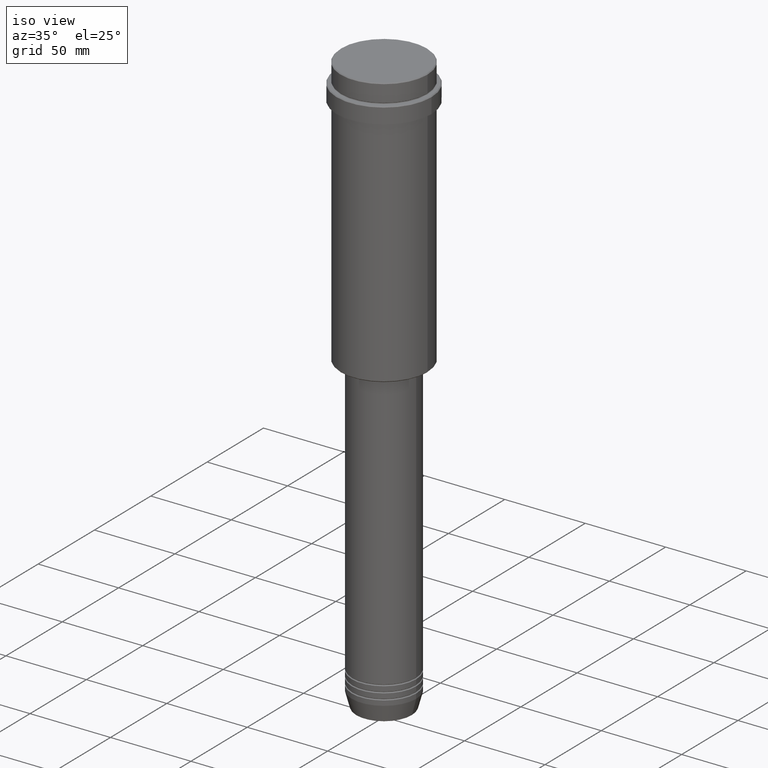
[diagram: clean part render]
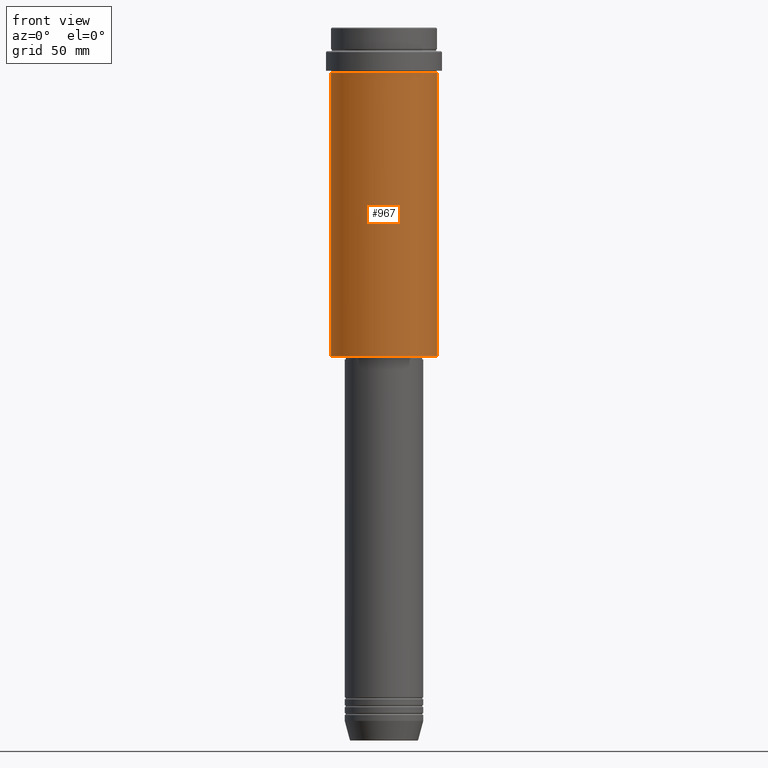
[diagram: tour spotlight — one face highlighted and labeled with its STEP entity id]
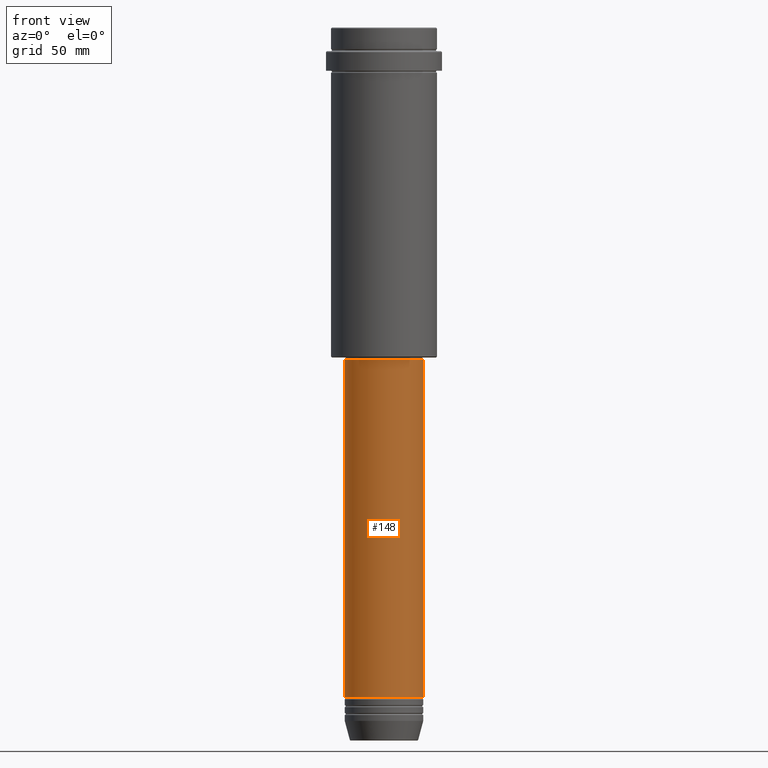
[diagram: tour spotlight — one face highlighted and labeled with its STEP entity id]
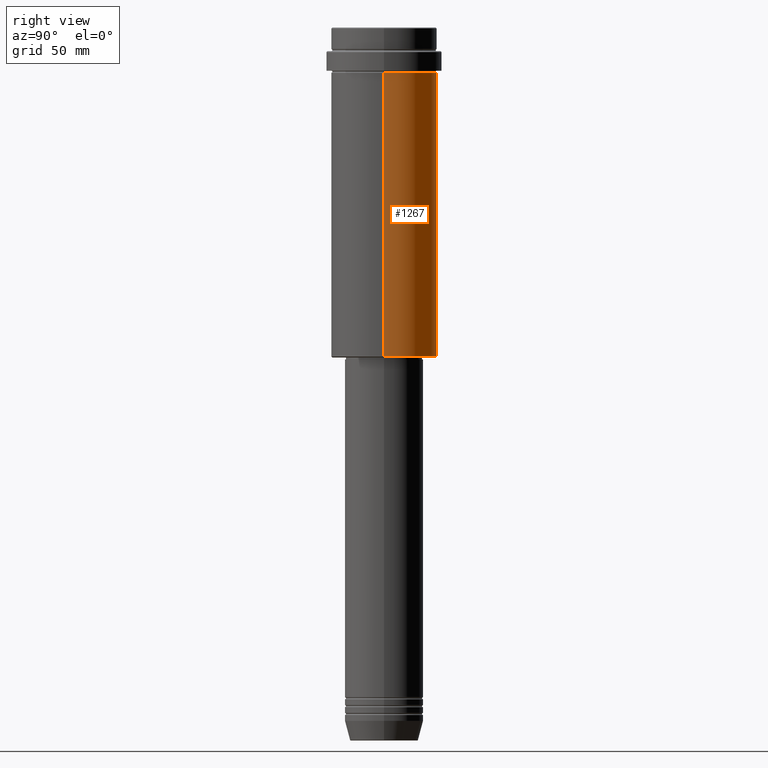
[diagram: tour spotlight — one face highlighted and labeled with its STEP entity id]
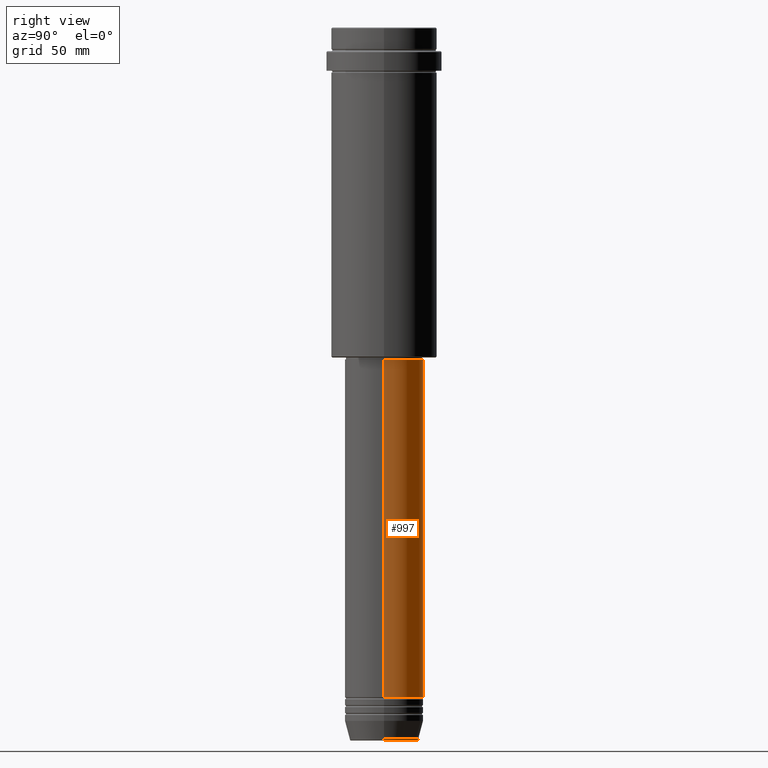
[diagram: tour spotlight — one face highlighted and labeled with its STEP entity id]
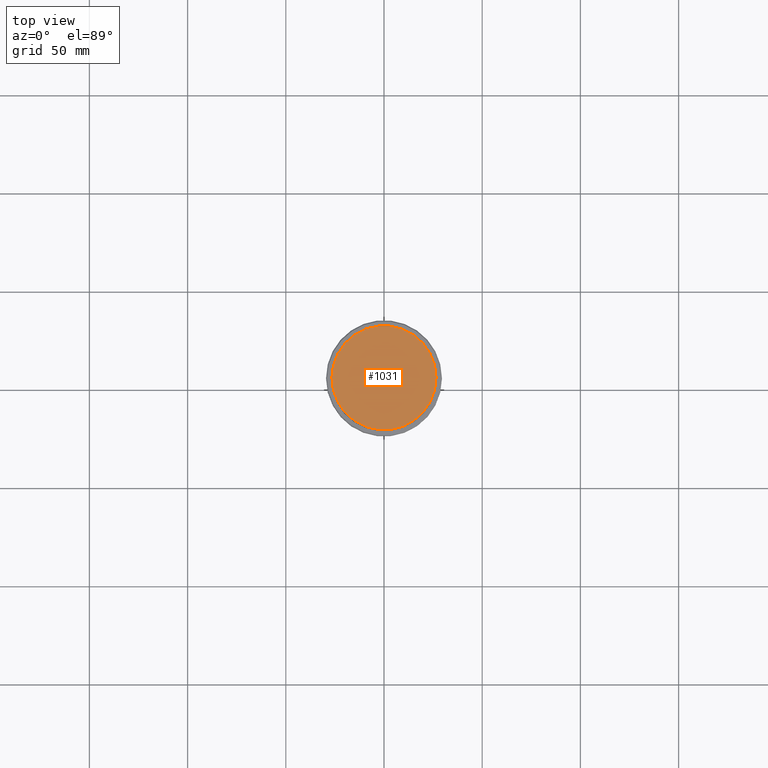
[diagram: tour spotlight — one face highlighted and labeled with its STEP entity id]
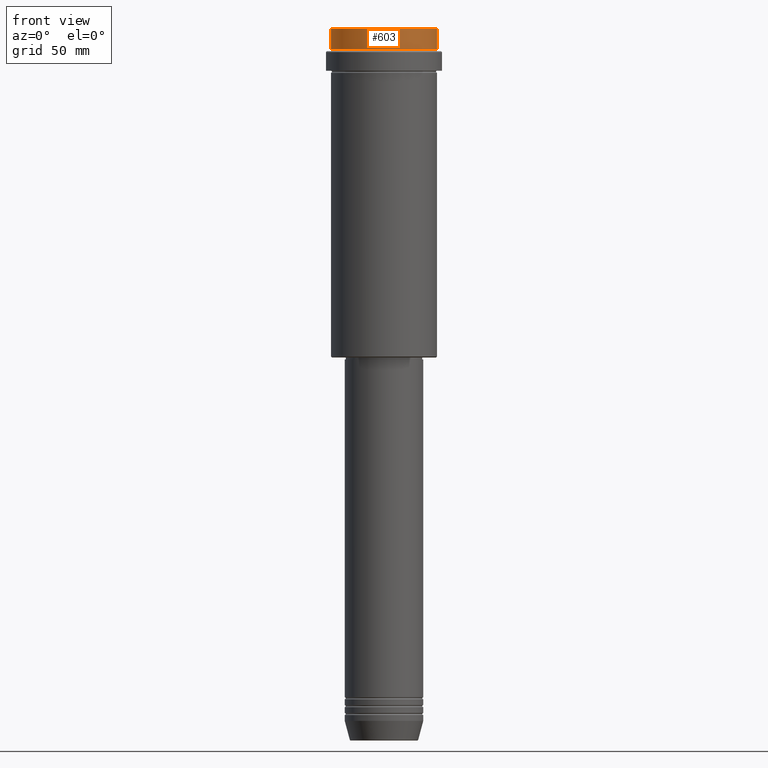
[diagram: tour spotlight — one face highlighted and labeled with its STEP entity id]
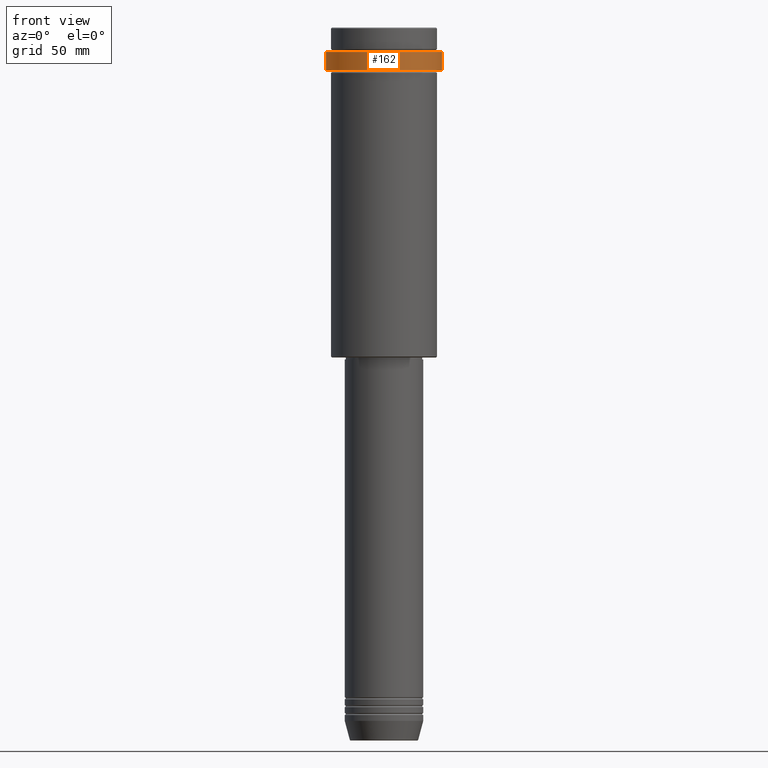
[diagram: tour spotlight — one face highlighted and labeled with its STEP entity id]
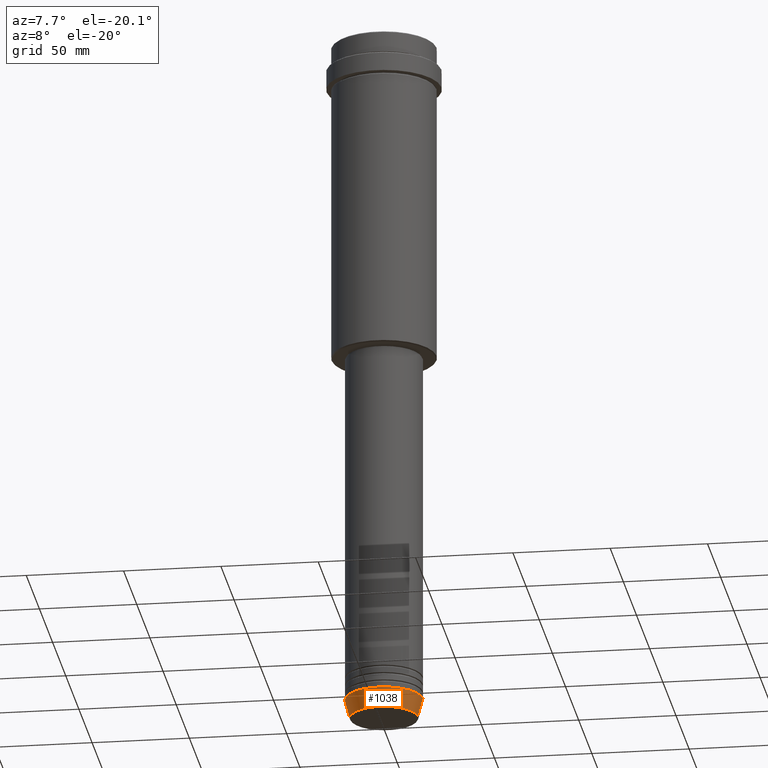
[diagram: tour spotlight — one face highlighted and labeled with its STEP entity id]
A machine part: a face-by-face anatomy tour. The part has 52 B-rep faces; the first image is the clean iso view, then the 8 largest visible faces are spotlighted one at a time (largest first), each with its STEP entity span.

Face 1 — front view, entity #967. In plain terms, the highlighted cylindrical surface (partial cylindrical patch) has radius 27 mm, axis along (-0, -0, 1).
Definition (entity closure, byte-faithful):
#1 = VERTEX_POINT ( 'NONE', #900 ) ;
#57 = DIRECTION ( 'NONE',  ( -0.000000000000000000, -0.000000000000000000, 1.000000000000000000 ) ) ;
#61 = CARTESIAN_POINT ( 'NONE',  ( -27.00000000000000355, 3.306546357697854128E-15, -23.00000000000001421 ) ) ;
#118 = EDGE_CURVE ( 'NONE', #1404, #1, #1062, .T. ) ;
#120 = DIRECTION ( 'NONE',  ( 1.000000000000000000, 0.000000000000000000, 0.000000000000000000 ) ) ;
#122 = DIRECTION ( 'NONE',  ( -0.000000000000000000, -0.000000000000000000, 1.000000000000000000 ) ) ;
#141 = CARTESIAN_POINT ( 'NONE',  ( 0.000000000000000000, 0.000000000000000000, -23.00000000000001421 ) ) ;
#192 = EDGE_LOOP ( 'NONE', ( #680, #232, #1278, #1073 ) ) ;
#232 = ORIENTED_EDGE ( 'NONE', *, *, #1353, .T. ) ;
#238 = EDGE_CURVE ( 'NONE', #768, #1404, #844, .T. ) ;
#269 = CIRCLE ( 'NONE', #958, 27.00000000000000355 ) ;
#282 = VECTOR ( 'NONE', #1263, 1000.000000000000000 ) ;
#371 = DIRECTION ( 'NONE',  ( -1.000000000000000000, 0.000000000000000000, 0.000000000000000000 ) ) ;
#496 = DIRECTION ( 'NONE',  ( -0.000000000000000000, -0.000000000000000000, 1.000000000000000000 ) ) ;
#555 = DIRECTION ( 'NONE',  ( -0.000000000000000000, -0.000000000000000000, 1.000000000000000000 ) ) ;
#636 = AXIS2_PLACEMENT_3D ( 'NONE', #853, #57, #1374 ) ;
#680 = ORIENTED_EDGE ( 'NONE', *, *, #238, .F. ) ;
#714 = AXIS2_PLACEMENT_3D ( 'NONE', #141, #496, #120 ) ;
#752 = FACE_OUTER_BOUND ( 'NONE', #192, .T. ) ;
#768 = VERTEX_POINT ( 'NONE', #927 ) ;
#793 = LINE ( 'NONE', #1407, #1345 ) ;
#844 = LINE ( 'NONE', #1139, #282 ) ;
#853 = CARTESIAN_POINT ( 'NONE',  ( 0.000000000000000000, 0.000000000000000000, 0.000000000000000000 ) ) ;
#900 = CARTESIAN_POINT ( 'NONE',  ( 27.00000000000000355, 0.000000000000000000, -23.00000000000001421 ) ) ;
#902 = VERTEX_POINT ( 'NONE', #1127 ) ;
#927 = CARTESIAN_POINT ( 'NONE',  ( -27.00000000000000355, 3.306546357697854128E-15, -167.5000000000000568 ) ) ;
#958 = AXIS2_PLACEMENT_3D ( 'NONE', #1344, #122, #371 ) ;
#967 = ADVANCED_FACE ( 'NONE', ( #752 ), #1053, .T. ) ;
#1040 = EDGE_CURVE ( 'NONE', #902, #1, #793, .T. ) ;
#1053 = CYLINDRICAL_SURFACE ( 'NONE', #636, 27.00000000000000355 ) ;
#1062 = CIRCLE ( 'NONE', #714, 27.00000000000000355 ) ;
#1073 = ORIENTED_EDGE ( 'NONE', *, *, #118, .F. ) ;
#1127 = CARTESIAN_POINT ( 'NONE',  ( 27.00000000000000355, 0.000000000000000000, -167.5000000000000568 ) ) ;
#1139 = CARTESIAN_POINT ( 'NONE',  ( -27.00000000000000355, 3.306546357697854128E-15, 0.000000000000000000 ) ) ;
#1263 = DIRECTION ( 'NONE',  ( -0.000000000000000000, -0.000000000000000000, 1.000000000000000000 ) ) ;
#1278 = ORIENTED_EDGE ( 'NONE', *, *, #1040, .T. ) ;
#1344 = CARTESIAN_POINT ( 'NONE',  ( 0.000000000000000000, 0.000000000000000000, -167.5000000000000568 ) ) ;
#1345 = VECTOR ( 'NONE', #555, 1000.000000000000000 ) ;
#1353 = EDGE_CURVE ( 'NONE', #768, #902, #269, .T. ) ;
#1374 = DIRECTION ( 'NONE',  ( 1.000000000000000000, 0.000000000000000000, 0.000000000000000000 ) ) ;
#1404 = VERTEX_POINT ( 'NONE', #61 ) ;
#1407 = CARTESIAN_POINT ( 'NONE',  ( 27.00000000000000355, 0.000000000000000000, 0.000000000000000000 ) ) ;

Face 2 — front view, entity #148. In plain terms, the highlighted cylindrical surface (partial cylindrical patch) has radius 20 mm, axis along (-0, -0, 1).
Definition (entity closure, byte-faithful):
#23 = DIRECTION ( 'NONE',  ( 1.000000000000000000, 0.000000000000000000, 0.000000000000000000 ) ) ;
#40 = CARTESIAN_POINT ( 'NONE',  ( -20.00000000000000000, 2.449293598294706513E-15, 0.000000000000000000 ) ) ;
#49 = CIRCLE ( 'NONE', #915, 20.00000000000000000 ) ;
#54 = DIRECTION ( 'NONE',  ( 1.000000000000000000, 0.000000000000000000, 0.000000000000000000 ) ) ;
#78 = CARTESIAN_POINT ( 'NONE',  ( 20.00000000000000000, 0.000000000000000000, 0.000000000000000000 ) ) ;
#89 = EDGE_CURVE ( 'NONE', #699, #415, #604, .T. ) ;
#123 = DIRECTION ( 'NONE',  ( -0.000000000000000000, -0.000000000000000000, 1.000000000000000000 ) ) ;
#148 = ADVANCED_FACE ( 'NONE', ( #283 ), #837, .T. ) ;
#283 = FACE_OUTER_BOUND ( 'NONE', #327, .T. ) ;
#289 = VECTOR ( 'NONE', #959, 1000.000000000000000 ) ;
#327 = EDGE_LOOP ( 'NONE', ( #774, #647, #1166, #1118 ) ) ;
#354 = DIRECTION ( 'NONE',  ( -0.000000000000000000, -0.000000000000000000, 1.000000000000000000 ) ) ;
#415 = VERTEX_POINT ( 'NONE', #841 ) ;
#421 = VERTEX_POINT ( 'NONE', #1361 ) ;
#439 = DIRECTION ( 'NONE',  ( -0.000000000000000000, -0.000000000000000000, 1.000000000000000000 ) ) ;
#456 = AXIS2_PLACEMENT_3D ( 'NONE', #1158, #1039, #54 ) ;
#510 = EDGE_CURVE ( 'NONE', #415, #421, #49, .T. ) ;
#583 = DIRECTION ( 'NONE',  ( 1.000000000000000000, 0.000000000000000000, 0.000000000000000000 ) ) ;
#604 = LINE ( 'NONE', #40, #617 ) ;
#617 = VECTOR ( 'NONE', #123, 1000.000000000000000 ) ;
#640 = LINE ( 'NONE', #78, #289 ) ;
#647 = ORIENTED_EDGE ( 'NONE', *, *, #748, .T. ) ;
#699 = VERTEX_POINT ( 'NONE', #1216 ) ;
#748 = EDGE_CURVE ( 'NONE', #699, #1094, #822, .T. ) ;
#774 = ORIENTED_EDGE ( 'NONE', *, *, #89, .F. ) ;
#822 = CIRCLE ( 'NONE', #1376, 20.00000000000000000 ) ;
#837 = CYLINDRICAL_SURFACE ( 'NONE', #456, 20.00000000000000000 ) ;
#841 = CARTESIAN_POINT ( 'NONE',  ( -20.00000000000000000, 2.449293598294706513E-15, -168.9999999999999432 ) ) ;
#898 = CARTESIAN_POINT ( 'NONE',  ( 20.00000000000000000, 0.000000000000000000, -340.9999999999998863 ) ) ;
#901 = CARTESIAN_POINT ( 'NONE',  ( 0.000000000000000000, 0.000000000000000000, -340.9999999999998863 ) ) ;
#915 = AXIS2_PLACEMENT_3D ( 'NONE', #1405, #439, #23 ) ;
#959 = DIRECTION ( 'NONE',  ( -0.000000000000000000, -0.000000000000000000, 1.000000000000000000 ) ) ;
#1014 = EDGE_CURVE ( 'NONE', #1094, #421, #640, .T. ) ;
#1039 = DIRECTION ( 'NONE',  ( -0.000000000000000000, -0.000000000000000000, 1.000000000000000000 ) ) ;
#1094 = VERTEX_POINT ( 'NONE', #898 ) ;
#1118 = ORIENTED_EDGE ( 'NONE', *, *, #510, .F. ) ;
#1158 = CARTESIAN_POINT ( 'NONE',  ( 0.000000000000000000, 0.000000000000000000, 0.000000000000000000 ) ) ;
#1166 = ORIENTED_EDGE ( 'NONE', *, *, #1014, .T. ) ;
#1216 = CARTESIAN_POINT ( 'NONE',  ( -20.00000000000000000, 2.449293598294706513E-15, -340.9999999999998863 ) ) ;
#1361 = CARTESIAN_POINT ( 'NONE',  ( 20.00000000000000000, 0.000000000000000000, -168.9999999999999432 ) ) ;
#1376 = AXIS2_PLACEMENT_3D ( 'NONE', #901, #354, #583 ) ;
#1405 = CARTESIAN_POINT ( 'NONE',  ( 0.000000000000000000, 0.000000000000000000, -168.9999999999999432 ) ) ;

Face 3 — right view, entity #1267. In plain terms, the highlighted cylindrical surface (partial cylindrical patch) has radius 27 mm, axis along (-0, -0, 1).
Definition (entity closure, byte-faithful):
#1 = VERTEX_POINT ( 'NONE', #900 ) ;
#13 = CARTESIAN_POINT ( 'NONE',  ( 0.000000000000000000, 0.000000000000000000, -167.5000000000000568 ) ) ;
#45 = DIRECTION ( 'NONE',  ( 1.000000000000000000, 0.000000000000000000, 0.000000000000000000 ) ) ;
#61 = CARTESIAN_POINT ( 'NONE',  ( -27.00000000000000355, 3.306546357697854128E-15, -23.00000000000001421 ) ) ;
#86 = EDGE_CURVE ( 'NONE', #1, #1404, #380, .T. ) ;
#129 = FACE_OUTER_BOUND ( 'NONE', #1227, .T. ) ;
#144 = CYLINDRICAL_SURFACE ( 'NONE', #1297, 27.00000000000000355 ) ;
#196 = ORIENTED_EDGE ( 'NONE', *, *, #238, .T. ) ;
#238 = EDGE_CURVE ( 'NONE', #768, #1404, #844, .T. ) ;
#248 = ORIENTED_EDGE ( 'NONE', *, *, #1040, .F. ) ;
#282 = VECTOR ( 'NONE', #1263, 1000.000000000000000 ) ;
#380 = CIRCLE ( 'NONE', #1357, 27.00000000000000355 ) ;
#546 = EDGE_CURVE ( 'NONE', #902, #768, #1155, .T. ) ;
#555 = DIRECTION ( 'NONE',  ( -0.000000000000000000, -0.000000000000000000, 1.000000000000000000 ) ) ;
#672 = DIRECTION ( 'NONE',  ( -1.000000000000000000, 0.000000000000000000, 0.000000000000000000 ) ) ;
#696 = CARTESIAN_POINT ( 'NONE',  ( 0.000000000000000000, 0.000000000000000000, 0.000000000000000000 ) ) ;
#743 = ORIENTED_EDGE ( 'NONE', *, *, #86, .F. ) ;
#768 = VERTEX_POINT ( 'NONE', #927 ) ;
#777 = AXIS2_PLACEMENT_3D ( 'NONE', #13, #1055, #672 ) ;
#793 = LINE ( 'NONE', #1407, #1345 ) ;
#825 = CARTESIAN_POINT ( 'NONE',  ( 0.000000000000000000, 0.000000000000000000, -23.00000000000001421 ) ) ;
#844 = LINE ( 'NONE', #1139, #282 ) ;
#900 = CARTESIAN_POINT ( 'NONE',  ( 27.00000000000000355, 0.000000000000000000, -23.00000000000001421 ) ) ;
#902 = VERTEX_POINT ( 'NONE', #1127 ) ;
#924 = DIRECTION ( 'NONE',  ( -0.000000000000000000, -0.000000000000000000, 1.000000000000000000 ) ) ;
#927 = CARTESIAN_POINT ( 'NONE',  ( -27.00000000000000355, 3.306546357697854128E-15, -167.5000000000000568 ) ) ;
#1024 = ORIENTED_EDGE ( 'NONE', *, *, #546, .T. ) ;
#1033 = DIRECTION ( 'NONE',  ( 1.000000000000000000, 0.000000000000000000, 0.000000000000000000 ) ) ;
#1040 = EDGE_CURVE ( 'NONE', #902, #1, #793, .T. ) ;
#1055 = DIRECTION ( 'NONE',  ( -0.000000000000000000, -0.000000000000000000, 1.000000000000000000 ) ) ;
#1127 = CARTESIAN_POINT ( 'NONE',  ( 27.00000000000000355, 0.000000000000000000, -167.5000000000000568 ) ) ;
#1134 = DIRECTION ( 'NONE',  ( -0.000000000000000000, -0.000000000000000000, 1.000000000000000000 ) ) ;
#1139 = CARTESIAN_POINT ( 'NONE',  ( -27.00000000000000355, 3.306546357697854128E-15, 0.000000000000000000 ) ) ;
#1155 = CIRCLE ( 'NONE', #777, 27.00000000000000355 ) ;
#1227 = EDGE_LOOP ( 'NONE', ( #1024, #196, #743, #248 ) ) ;
#1263 = DIRECTION ( 'NONE',  ( -0.000000000000000000, -0.000000000000000000, 1.000000000000000000 ) ) ;
#1267 = ADVANCED_FACE ( 'NONE', ( #129 ), #144, .T. ) ;
#1297 = AXIS2_PLACEMENT_3D ( 'NONE', #696, #924, #1033 ) ;
#1345 = VECTOR ( 'NONE', #555, 1000.000000000000000 ) ;
#1357 = AXIS2_PLACEMENT_3D ( 'NONE', #825, #1134, #45 ) ;
#1404 = VERTEX_POINT ( 'NONE', #61 ) ;
#1407 = CARTESIAN_POINT ( 'NONE',  ( 27.00000000000000355, 0.000000000000000000, 0.000000000000000000 ) ) ;

Face 4 — right view, entity #997. In plain terms, the highlighted cylindrical surface (partial cylindrical patch) has radius 20 mm, axis along (-0, -0, 1).
Definition (entity closure, byte-faithful):
#20 = CARTESIAN_POINT ( 'NONE',  ( 0.000000000000000000, 0.000000000000000000, -340.9999999999998863 ) ) ;
#40 = CARTESIAN_POINT ( 'NONE',  ( -20.00000000000000000, 2.449293598294706513E-15, 0.000000000000000000 ) ) ;
#42 = DIRECTION ( 'NONE',  ( 1.000000000000000000, 0.000000000000000000, 0.000000000000000000 ) ) ;
#78 = CARTESIAN_POINT ( 'NONE',  ( 20.00000000000000000, 0.000000000000000000, 0.000000000000000000 ) ) ;
#89 = EDGE_CURVE ( 'NONE', #699, #415, #604, .T. ) ;
#123 = DIRECTION ( 'NONE',  ( -0.000000000000000000, -0.000000000000000000, 1.000000000000000000 ) ) ;
#147 = DIRECTION ( 'NONE',  ( -0.000000000000000000, -0.000000000000000000, 1.000000000000000000 ) ) ;
#240 = EDGE_LOOP ( 'NONE', ( #443, #1086, #1306, #903 ) ) ;
#289 = VECTOR ( 'NONE', #959, 1000.000000000000000 ) ;
#302 = EDGE_CURVE ( 'NONE', #421, #415, #597, .T. ) ;
#415 = VERTEX_POINT ( 'NONE', #841 ) ;
#421 = VERTEX_POINT ( 'NONE', #1361 ) ;
#443 = ORIENTED_EDGE ( 'NONE', *, *, #920, .T. ) ;
#462 = CIRCLE ( 'NONE', #547, 20.00000000000000000 ) ;
#547 = AXIS2_PLACEMENT_3D ( 'NONE', #20, #147, #42 ) ;
#597 = CIRCLE ( 'NONE', #1373, 20.00000000000000000 ) ;
#604 = LINE ( 'NONE', #40, #617 ) ;
#617 = VECTOR ( 'NONE', #123, 1000.000000000000000 ) ;
#640 = LINE ( 'NONE', #78, #289 ) ;
#699 = VERTEX_POINT ( 'NONE', #1216 ) ;
#759 = DIRECTION ( 'NONE',  ( 1.000000000000000000, 0.000000000000000000, 0.000000000000000000 ) ) ;
#841 = CARTESIAN_POINT ( 'NONE',  ( -20.00000000000000000, 2.449293598294706513E-15, -168.9999999999999432 ) ) ;
#842 = FACE_OUTER_BOUND ( 'NONE', #240, .T. ) ;
#898 = CARTESIAN_POINT ( 'NONE',  ( 20.00000000000000000, 0.000000000000000000, -340.9999999999998863 ) ) ;
#903 = ORIENTED_EDGE ( 'NONE', *, *, #1014, .F. ) ;
#920 = EDGE_CURVE ( 'NONE', #1094, #699, #462, .T. ) ;
#941 = CARTESIAN_POINT ( 'NONE',  ( 0.000000000000000000, 0.000000000000000000, 0.000000000000000000 ) ) ;
#959 = DIRECTION ( 'NONE',  ( -0.000000000000000000, -0.000000000000000000, 1.000000000000000000 ) ) ;
#991 = CARTESIAN_POINT ( 'NONE',  ( 0.000000000000000000, 0.000000000000000000, -168.9999999999999432 ) ) ;
#997 = ADVANCED_FACE ( 'NONE', ( #842 ), #1292, .T. ) ;
#1014 = EDGE_CURVE ( 'NONE', #1094, #421, #640, .T. ) ;
#1086 = ORIENTED_EDGE ( 'NONE', *, *, #89, .T. ) ;
#1094 = VERTEX_POINT ( 'NONE', #898 ) ;
#1176 = AXIS2_PLACEMENT_3D ( 'NONE', #941, #1282, #759 ) ;
#1212 = DIRECTION ( 'NONE',  ( 1.000000000000000000, 0.000000000000000000, 0.000000000000000000 ) ) ;
#1216 = CARTESIAN_POINT ( 'NONE',  ( -20.00000000000000000, 2.449293598294706513E-15, -340.9999999999998863 ) ) ;
#1282 = DIRECTION ( 'NONE',  ( -0.000000000000000000, -0.000000000000000000, 1.000000000000000000 ) ) ;
#1292 = CYLINDRICAL_SURFACE ( 'NONE', #1176, 20.00000000000000000 ) ;
#1306 = ORIENTED_EDGE ( 'NONE', *, *, #302, .F. ) ;
#1361 = CARTESIAN_POINT ( 'NONE',  ( 20.00000000000000000, 0.000000000000000000, -168.9999999999999432 ) ) ;
#1373 = AXIS2_PLACEMENT_3D ( 'NONE', #991, #1415, #1212 ) ;
#1415 = DIRECTION ( 'NONE',  ( -0.000000000000000000, -0.000000000000000000, 1.000000000000000000 ) ) ;

Face 5 — top view, entity #1031. In plain terms, the highlighted planar face has unit normal (0, -0, 1).
Definition (entity closure, byte-faithful):
#52 = PLANE ( 'NONE',  #781 ) ;
#150 = DIRECTION ( 'NONE',  ( 1.000000000000000000, 0.000000000000000000, 0.000000000000000000 ) ) ;
#375 = VERTEX_POINT ( 'NONE', #595 ) ;
#431 = CIRCLE ( 'NONE', #1231, 26.50000000000002487 ) ;
#495 = EDGE_LOOP ( 'NONE', ( #575, #750 ) ) ;
#506 = CIRCLE ( 'NONE', #821, 26.50000000000002487 ) ;
#513 = DIRECTION ( 'NONE',  ( 0.000000000000000000, -0.000000000000000000, 1.000000000000000000 ) ) ;
#560 = CARTESIAN_POINT ( 'NONE',  ( 0.000000000000000000, 0.000000000000000000, 0.000000000000000000 ) ) ;
#575 = ORIENTED_EDGE ( 'NONE', *, *, #623, .T. ) ;
#595 = CARTESIAN_POINT ( 'NONE',  ( 26.50000000000002487, 3.275930187719171524E-15, 0.000000000000000000 ) ) ;
#611 = DIRECTION ( 'NONE',  ( -0.000000000000000000, -0.000000000000000000, 1.000000000000000000 ) ) ;
#623 = EDGE_CURVE ( 'NONE', #630, #375, #506, .T. ) ;
#630 = VERTEX_POINT ( 'NONE', #1189 ) ;
#750 = ORIENTED_EDGE ( 'NONE', *, *, #1268, .T. ) ;
#781 = AXIS2_PLACEMENT_3D ( 'NONE', #831, #513, #1266 ) ;
#821 = AXIS2_PLACEMENT_3D ( 'NONE', #560, #611, #872 ) ;
#831 = CARTESIAN_POINT ( 'NONE',  ( 0.000000000000000000, 0.000000000000000000, 0.000000000000000000 ) ) ;
#872 = DIRECTION ( 'NONE',  ( 1.000000000000000000, 0.000000000000000000, 0.000000000000000000 ) ) ;
#1031 = ADVANCED_FACE ( 'NONE', ( #1043 ), #52, .T. ) ;
#1043 = FACE_OUTER_BOUND ( 'NONE', #495, .T. ) ;
#1132 = CARTESIAN_POINT ( 'NONE',  ( 0.000000000000000000, 0.000000000000000000, 0.000000000000000000 ) ) ;
#1189 = CARTESIAN_POINT ( 'NONE',  ( -26.50000000000002487, 0.000000000000000000, 0.000000000000000000 ) ) ;
#1231 = AXIS2_PLACEMENT_3D ( 'NONE', #1132, #1350, #150 ) ;
#1266 = DIRECTION ( 'NONE',  ( 1.000000000000000000, 0.000000000000000000, 0.000000000000000000 ) ) ;
#1268 = EDGE_CURVE ( 'NONE', #375, #630, #431, .T. ) ;
#1350 = DIRECTION ( 'NONE',  ( -0.000000000000000000, -0.000000000000000000, 1.000000000000000000 ) ) ;

Face 6 — front view, entity #603. In plain terms, the highlighted cylindrical surface (partial cylindrical patch) has radius 27 mm, axis along (-0, -0, 1).
Definition (entity closure, byte-faithful):
#21 = ORIENTED_EDGE ( 'NONE', *, *, #688, .F. ) ;
#33 = AXIS2_PLACEMENT_3D ( 'NONE', #1315, #980, #331 ) ;
#60 = LINE ( 'NONE', #612, #1339 ) ;
#104 = CARTESIAN_POINT ( 'NONE',  ( 27.00000000000000355, 0.000000000000000000, -0.4999999999999241163 ) ) ;
#124 = CARTESIAN_POINT ( 'NONE',  ( 0.000000000000000000, 0.000000000000000000, -11.00000000000000178 ) ) ;
#126 = ORIENTED_EDGE ( 'NONE', *, *, #132, .T. ) ;
#132 = EDGE_CURVE ( 'NONE', #204, #274, #60, .T. ) ;
#153 = FACE_OUTER_BOUND ( 'NONE', #186, .T. ) ;
#163 = DIRECTION ( 'NONE',  ( -0.000000000000000000, -0.000000000000000000, 1.000000000000000000 ) ) ;
#186 = EDGE_LOOP ( 'NONE', ( #21, #1019, #126, #512 ) ) ;
#193 = VERTEX_POINT ( 'NONE', #278 ) ;
#204 = VERTEX_POINT ( 'NONE', #262 ) ;
#213 = AXIS2_PLACEMENT_3D ( 'NONE', #807, #540, #982 ) ;
#262 = CARTESIAN_POINT ( 'NONE',  ( 27.00000000000000355, 0.000000000000000000, -11.00000000000000178 ) ) ;
#274 = VERTEX_POINT ( 'NONE', #104 ) ;
#278 = CARTESIAN_POINT ( 'NONE',  ( -27.00000000000000355, 3.306546357697854128E-15, -11.00000000000000178 ) ) ;
#331 = DIRECTION ( 'NONE',  ( 1.000000000000000000, 0.000000000000000000, 0.000000000000000000 ) ) ;
#374 = EDGE_CURVE ( 'NONE', #193, #204, #1082, .T. ) ;
#475 = DIRECTION ( 'NONE',  ( -0.000000000000000000, -0.000000000000000000, 1.000000000000000000 ) ) ;
#476 = CARTESIAN_POINT ( 'NONE',  ( -27.00000000000000355, 3.306546357697854128E-15, -0.4999999999999241163 ) ) ;
#479 = CYLINDRICAL_SURFACE ( 'NONE', #213, 27.00000000000000355 ) ;
#512 = ORIENTED_EDGE ( 'NONE', *, *, #1126, .T. ) ;
#540 = DIRECTION ( 'NONE',  ( -0.000000000000000000, -0.000000000000000000, 1.000000000000000000 ) ) ;
#603 = ADVANCED_FACE ( 'NONE', ( #153 ), #479, .T. ) ;
#612 = CARTESIAN_POINT ( 'NONE',  ( 27.00000000000000355, 0.000000000000000000, 0.000000000000000000 ) ) ;
#619 = AXIS2_PLACEMENT_3D ( 'NONE', #124, #475, #697 ) ;
#665 = DIRECTION ( 'NONE',  ( -0.000000000000000000, -0.000000000000000000, 1.000000000000000000 ) ) ;
#688 = EDGE_CURVE ( 'NONE', #193, #911, #988, .T. ) ;
#697 = DIRECTION ( 'NONE',  ( 1.000000000000000000, 0.000000000000000000, 0.000000000000000000 ) ) ;
#773 = CARTESIAN_POINT ( 'NONE',  ( -27.00000000000000355, 3.306546357697854128E-15, 0.000000000000000000 ) ) ;
#807 = CARTESIAN_POINT ( 'NONE',  ( 0.000000000000000000, 0.000000000000000000, 0.000000000000000000 ) ) ;
#911 = VERTEX_POINT ( 'NONE', #476 ) ;
#980 = DIRECTION ( 'NONE',  ( 0.000000000000000000, 0.000000000000000000, -1.000000000000000000 ) ) ;
#982 = DIRECTION ( 'NONE',  ( 1.000000000000000000, 0.000000000000000000, 0.000000000000000000 ) ) ;
#988 = LINE ( 'NONE', #773, #1228 ) ;
#1019 = ORIENTED_EDGE ( 'NONE', *, *, #374, .T. ) ;
#1082 = CIRCLE ( 'NONE', #619, 27.00000000000000355 ) ;
#1087 = CIRCLE ( 'NONE', #33, 27.00000000000000355 ) ;
#1126 = EDGE_CURVE ( 'NONE', #274, #911, #1087, .T. ) ;
#1228 = VECTOR ( 'NONE', #665, 1000.000000000000000 ) ;
#1315 = CARTESIAN_POINT ( 'NONE',  ( 0.000000000000000000, 0.000000000000000000, -0.4999999999999241163 ) ) ;
#1339 = VECTOR ( 'NONE', #163, 1000.000000000000000 ) ;

Face 7 — front view, entity #162. In plain terms, the highlighted cylindrical surface (partial cylindrical patch) has radius 29.5 mm, axis along (-0, -0, 1).
Definition (entity closure, byte-faithful):
#39 = LINE ( 'NONE', #582, #550 ) ;
#115 = AXIS2_PLACEMENT_3D ( 'NONE', #1398, #1316, #782 ) ;
#162 = ADVANCED_FACE ( 'NONE', ( #1169 ), #518, .T. ) ;
#170 = AXIS2_PLACEMENT_3D ( 'NONE', #358, #1243, #497 ) ;
#215 = VERTEX_POINT ( 'NONE', #1012 ) ;
#234 = VERTEX_POINT ( 'NONE', #412 ) ;
#275 = CARTESIAN_POINT ( 'NONE',  ( 29.49999999999999645, 0.000000000000000000, -22.00000000000000711 ) ) ;
#292 = EDGE_LOOP ( 'NONE', ( #840, #745, #904, #470 ) ) ;
#358 = CARTESIAN_POINT ( 'NONE',  ( 0.000000000000000000, 0.000000000000000000, -22.00000000000000711 ) ) ;
#387 = CARTESIAN_POINT ( 'NONE',  ( 0.000000000000000000, 0.000000000000000000, 0.000000000000000000 ) ) ;
#409 = DIRECTION ( 'NONE',  ( -0.000000000000000000, -0.000000000000000000, 1.000000000000000000 ) ) ;
#412 = CARTESIAN_POINT ( 'NONE',  ( -29.50000000000000000, 3.612708057484691604E-15, -12.50000000000006040 ) ) ;
#470 = ORIENTED_EDGE ( 'NONE', *, *, #753, .T. ) ;
#474 = DIRECTION ( 'NONE',  ( -0.000000000000000000, -0.000000000000000000, 1.000000000000000000 ) ) ;
#497 = DIRECTION ( 'NONE',  ( 1.000000000000000000, 0.000000000000000000, 0.000000000000000000 ) ) ;
#518 = CYLINDRICAL_SURFACE ( 'NONE', #754, 29.50000000000000000 ) ;
#550 = VECTOR ( 'NONE', #474, 1000.000000000000000 ) ;
#582 = CARTESIAN_POINT ( 'NONE',  ( 29.50000000000000000, 0.000000000000000000, 0.000000000000000000 ) ) ;
#620 = CIRCLE ( 'NONE', #115, 29.50000000000000000 ) ;
#733 = CARTESIAN_POINT ( 'NONE',  ( -29.50000000000000000, 3.612708057484691604E-15, 0.000000000000000000 ) ) ;
#745 = ORIENTED_EDGE ( 'NONE', *, *, #1253, .T. ) ;
#753 = EDGE_CURVE ( 'NONE', #215, #234, #620, .T. ) ;
#754 = AXIS2_PLACEMENT_3D ( 'NONE', #387, #1258, #947 ) ;
#758 = CIRCLE ( 'NONE', #170, 29.49999999999999645 ) ;
#782 = DIRECTION ( 'NONE',  ( 1.000000000000000000, 0.000000000000000000, 0.000000000000000000 ) ) ;
#811 = CARTESIAN_POINT ( 'NONE',  ( -29.49999999999999645, 3.612708057484690815E-15, -22.00000000000000711 ) ) ;
#840 = ORIENTED_EDGE ( 'NONE', *, *, #971, .F. ) ;
#880 = VERTEX_POINT ( 'NONE', #811 ) ;
#904 = ORIENTED_EDGE ( 'NONE', *, *, #1294, .T. ) ;
#907 = VERTEX_POINT ( 'NONE', #275 ) ;
#947 = DIRECTION ( 'NONE',  ( 1.000000000000000000, 0.000000000000000000, 0.000000000000000000 ) ) ;
#971 = EDGE_CURVE ( 'NONE', #880, #234, #1366, .T. ) ;
#1012 = CARTESIAN_POINT ( 'NONE',  ( 29.50000000000000000, 0.000000000000000000, -12.50000000000006040 ) ) ;
#1045 = VECTOR ( 'NONE', #409, 1000.000000000000000 ) ;
#1169 = FACE_OUTER_BOUND ( 'NONE', #292, .T. ) ;
#1243 = DIRECTION ( 'NONE',  ( -0.000000000000000000, -0.000000000000000000, 1.000000000000000000 ) ) ;
#1253 = EDGE_CURVE ( 'NONE', #880, #907, #758, .T. ) ;
#1258 = DIRECTION ( 'NONE',  ( -0.000000000000000000, -0.000000000000000000, 1.000000000000000000 ) ) ;
#1294 = EDGE_CURVE ( 'NONE', #907, #215, #39, .T. ) ;
#1316 = DIRECTION ( 'NONE',  ( 0.000000000000000000, 0.000000000000000000, -1.000000000000000000 ) ) ;
#1366 = LINE ( 'NONE', #733, #1045 ) ;
#1398 = CARTESIAN_POINT ( 'NONE',  ( 0.000000000000000000, 0.000000000000000000, -12.50000000000006040 ) ) ;

Face 8 — auxiliary view, entity #1038. In plain terms, the highlighted conical surface has half-angle 15 deg.
Definition (entity closure, byte-faithful):
#14 = CARTESIAN_POINT ( 'NONE',  ( 20.00000000000000000, 0.000000000000000000, -353.0000000000000568 ) ) ;
#30 = VECTOR ( 'NONE', #601, 1000.000000000000114 ) ;
#140 = ORIENTED_EDGE ( 'NONE', *, *, #452, .T. ) ;
#152 = DIRECTION ( 'NONE',  ( -0.000000000000000000, -0.000000000000000000, 1.000000000000000000 ) ) ;
#190 = AXIS2_PLACEMENT_3D ( 'NONE', #625, #945, #1369 ) ;
#223 = VERTEX_POINT ( 'NONE', #14 ) ;
#224 = EDGE_CURVE ( 'NONE', #567, #1298, #936, .T. ) ;
#297 = LINE ( 'NONE', #923, #30 ) ;
#419 = DIRECTION ( 'NONE',  ( 0.2588190451025211836, 0.000000000000000000, 0.9659258262890680902 ) ) ;
#452 = EDGE_CURVE ( 'NONE', #1298, #223, #964, .T. ) ;
#460 = DIRECTION ( 'NONE',  ( 1.000000000000000000, 0.000000000000000000, 0.000000000000000000 ) ) ;
#473 = EDGE_LOOP ( 'NONE', ( #1236, #1355, #140, #1284 ) ) ;
#517 = CARTESIAN_POINT ( 'NONE',  ( -17.41980749484382684, 2.291302373663531915E-15, -362.6294095225512706 ) ) ;
#567 = VERTEX_POINT ( 'NONE', #517 ) ;
#568 = EDGE_CURVE ( 'NONE', #567, #1105, #297, .T. ) ;
#601 = DIRECTION ( 'NONE',  ( -0.2588190451025211836, 3.169619151431770488E-17, 0.9659258262890680902 ) ) ;
#610 = DIRECTION ( 'NONE',  ( 1.000000000000000000, 0.000000000000000000, 0.000000000000000000 ) ) ;
#621 = CONICAL_SURFACE ( 'NONE', #190, 20.00000000000000000, 0.2617993877991499074 ) ;
#625 = CARTESIAN_POINT ( 'NONE',  ( 0.000000000000000000, 0.000000000000000000, -353.0000000000000568 ) ) ;
#713 = EDGE_CURVE ( 'NONE', #1105, #223, #1156, .T. ) ;
#878 = CARTESIAN_POINT ( 'NONE',  ( -20.00000000000000000, 2.449293598294706513E-15, -353.0000000000000568 ) ) ;
#923 = CARTESIAN_POINT ( 'NONE',  ( -20.00000000000000000, 2.449293598294706513E-15, -353.0000000000000568 ) ) ;
#928 = CARTESIAN_POINT ( 'NONE',  ( 17.41980749484382684, 0.000000000000000000, -362.6294095225512706 ) ) ;
#936 = CIRCLE ( 'NONE', #1131, 17.41980749484382684 ) ;
#945 = DIRECTION ( 'NONE',  ( -0.000000000000000000, -0.000000000000000000, 1.000000000000000000 ) ) ;
#964 = LINE ( 'NONE', #1388, #1318 ) ;
#975 = AXIS2_PLACEMENT_3D ( 'NONE', #1330, #1417, #460 ) ;
#1038 = ADVANCED_FACE ( 'NONE', ( #1154 ), #621, .T. ) ;
#1105 = VERTEX_POINT ( 'NONE', #878 ) ;
#1131 = AXIS2_PLACEMENT_3D ( 'NONE', #1340, #152, #610 ) ;
#1154 = FACE_OUTER_BOUND ( 'NONE', #473, .T. ) ;
#1156 = CIRCLE ( 'NONE', #975, 20.00000000000000000 ) ;
#1236 = ORIENTED_EDGE ( 'NONE', *, *, #568, .F. ) ;
#1284 = ORIENTED_EDGE ( 'NONE', *, *, #713, .F. ) ;
#1298 = VERTEX_POINT ( 'NONE', #928 ) ;
#1318 = VECTOR ( 'NONE', #419, 1000.000000000000114 ) ;
#1330 = CARTESIAN_POINT ( 'NONE',  ( 0.000000000000000000, 0.000000000000000000, -353.0000000000000568 ) ) ;
#1340 = CARTESIAN_POINT ( 'NONE',  ( 0.000000000000000000, 0.000000000000000000, -362.6294095225512706 ) ) ;
#1355 = ORIENTED_EDGE ( 'NONE', *, *, #224, .T. ) ;
#1369 = DIRECTION ( 'NONE',  ( 1.000000000000000000, 0.000000000000000000, 0.000000000000000000 ) ) ;
#1388 = CARTESIAN_POINT ( 'NONE',  ( 20.00000000000000000, 0.000000000000000000, -353.0000000000000568 ) ) ;
#1417 = DIRECTION ( 'NONE',  ( -0.000000000000000000, -0.000000000000000000, 1.000000000000000000 ) ) ;